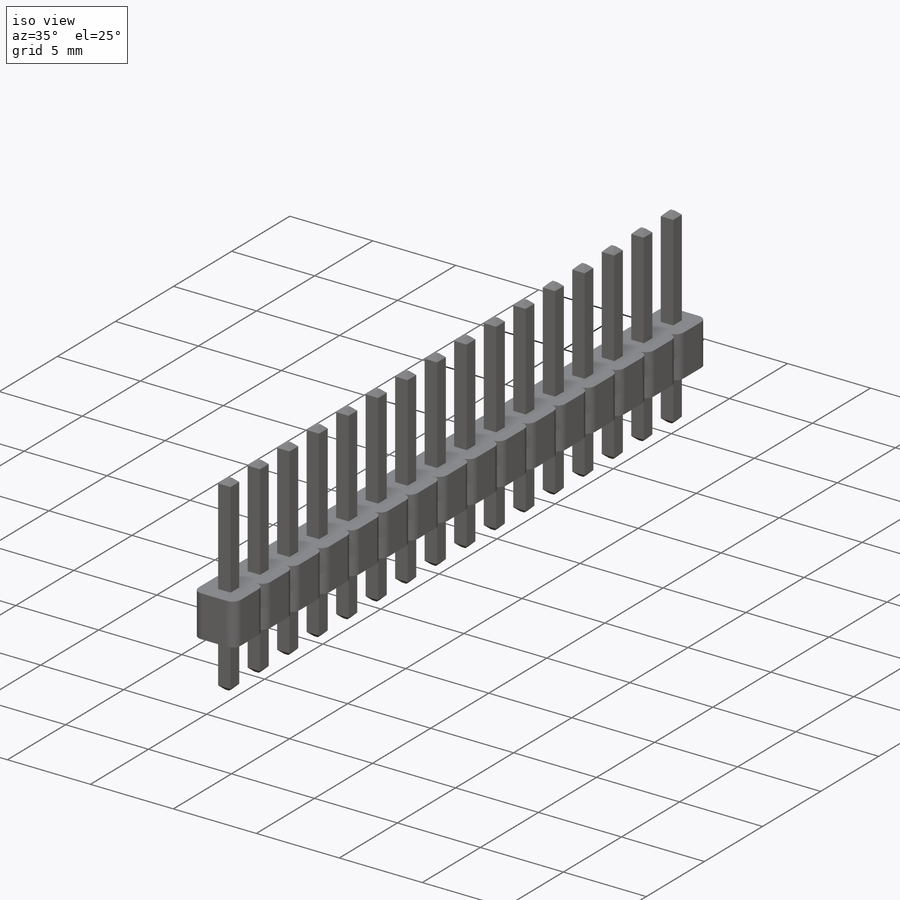
[diagram: iso view]
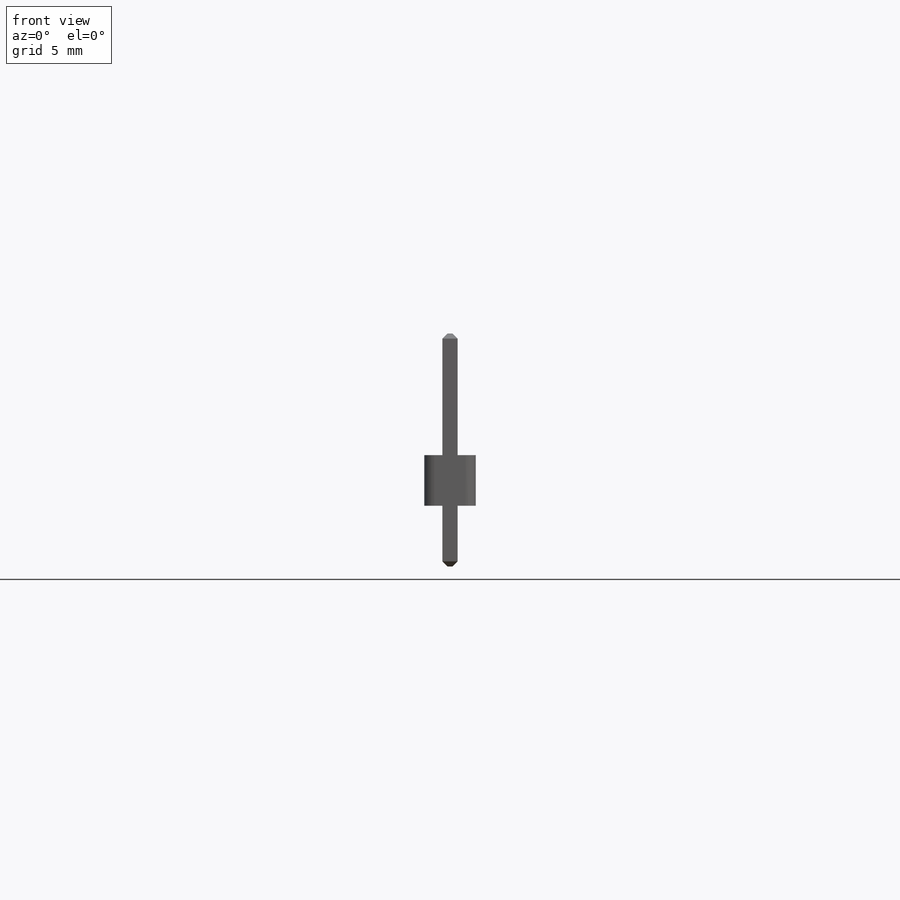
[diagram: front view]
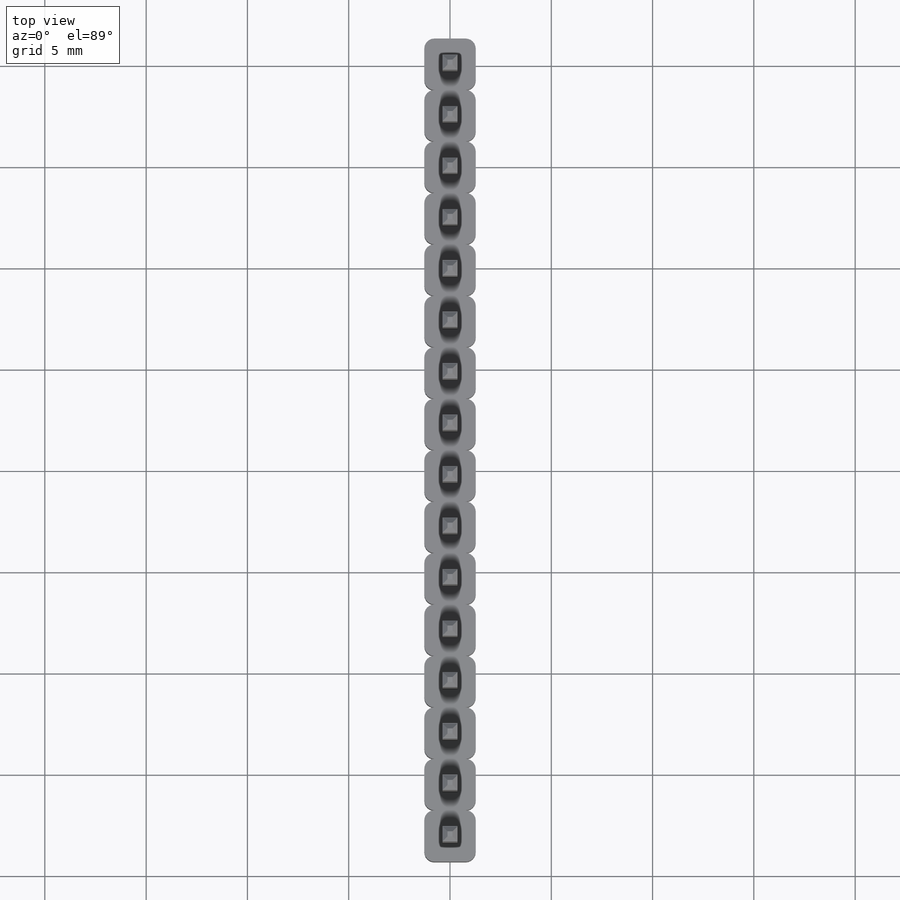
[diagram: top view]
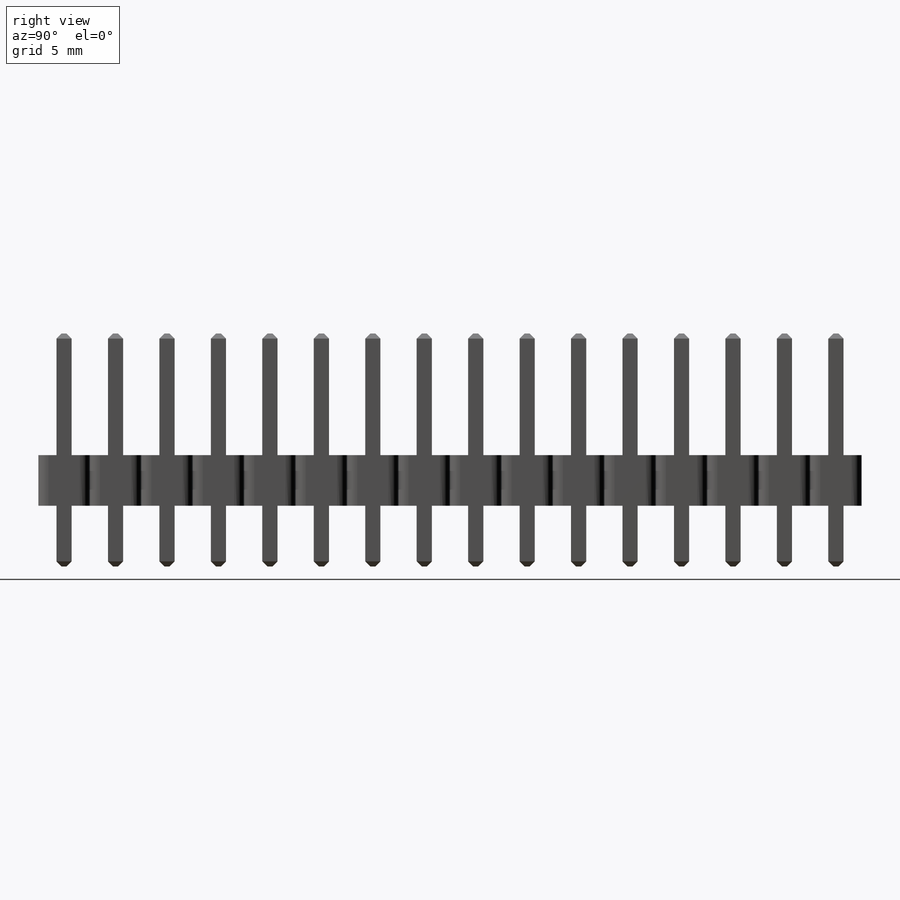
[diagram: right view]
SOLIDWORKS PART (.sldprt)
format: sldprt  version: not decoded by parser v0  size: 909,312 bytes
history: native  units: mm
features: plane x6, sketch x2, extrude x2, pattern_linear x2, material x1, chamfer x1 (+11 scaffold rows collapsed)
feature tree (25):
  scaffold x11  (default folders/planes/origin — collapsed)
  material  "Material <not specified>"
  plane  "Plane1"
  sketch  "Sketch1"  dims[D3=0.5mm D1=2.54mm D2=2.54mm]
  extrude  "Boss-Extrude1"  Depth=2.5mm
  plane  "Plane2"
  plane  "Plane3"
  pattern_linear  "LPattern1"  Count1=16 Count2=1 Spacing1=2.54mm Spacing2=2.54mm
  plane  "Plane4"
  sketch  "Sketch2"  dims[D1=0.75mm D2=0.75mm]
  extrude  "Boss-Extrude2"  Depth=8.5mm
  plane  "Plane5"
  plane  "Plane6"
  chamfer  "Chamfer1"  Distance=0.25mm Angle=45deg
  pattern_linear  "LPattern2"  Count1=16 Count2=1 Spacing1=2.54mm Spacing2=2.54mm
decode coverage: 7 of 7 modeling features carry decoded parameters
note: suppression state not decoded; provenance and decode notes live in map.json
